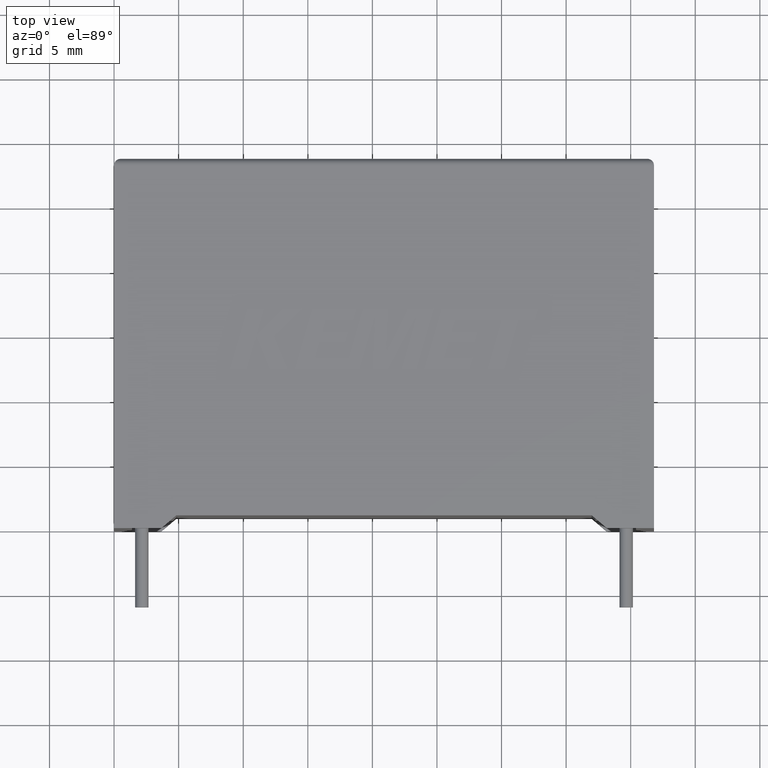
[diagram: clean part render]
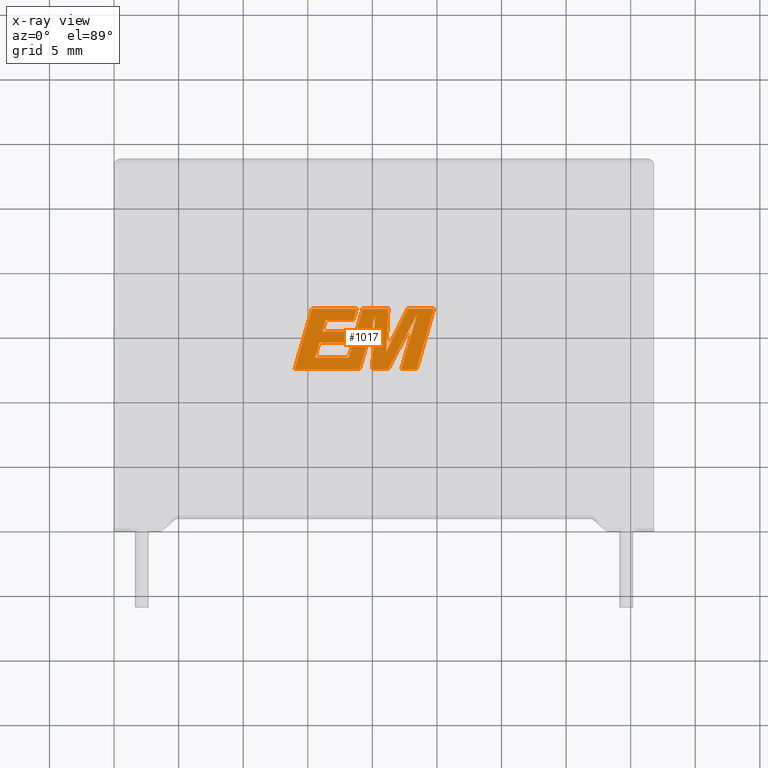
[diagram: x-ray — body ghosted, one internal face saturated and labeled with its STEP entity id]
A machine part, top view, then the same camera in x-ray: the body is ghosted and one INTERNAL B-rep face — a face not visible from any outside direction — is saturated and labeled: STEP entity #1017.
In plain terms, the highlighted planar face has unit normal (0, 0, -1).
Its self-contained STEP definition (entity closure, byte-faithful):
#3 = CARTESIAN_POINT ( 'NONE',  ( 19.98376570519902629, 12.30657999999985286, 16.19999999999999929 ) ) ;
#14 = EDGE_CURVE ( 'NONE', #2832, #770, #2727, .T. ) ;
#15 = VERTEX_POINT ( 'NONE', #1737 ) ;
#23 = VERTEX_POINT ( 'NONE', #2027 ) ;
#49 = DIRECTION ( 'NONE',  ( 1.000000000000000000, 0.000000000000000000, 0.000000000000000000 ) ) ;
#55 = ORIENTED_EDGE ( 'NONE', *, *, #1034, .F. ) ;
#76 = ORIENTED_EDGE ( 'NONE', *, *, #269, .F. ) ;
#100 = EDGE_CURVE ( 'NONE', #2660, #2832, #2961, .T. ) ;
#106 = DIRECTION ( 'NONE',  ( -0.2760118818968580467, -0.9611542233438683525, 0.000000000000000000 ) ) ;
#110 = ORIENTED_EDGE ( 'NONE', *, *, #2783, .F. ) ;
#158 = ORIENTED_EDGE ( 'NONE', *, *, #2367, .F. ) ;
#171 = EDGE_CURVE ( 'NONE', #23, #2660, #1397, .T. ) ;
#198 = DIRECTION ( 'NONE',  ( 0.2763139702539113007, 0.9610674221107073922, 0.000000000000000000 ) ) ;
#216 = CARTESIAN_POINT ( 'NONE',  ( 21.06365366960111629, 13.64368509566545384, 16.19999999999999929 ) ) ;
#219 = VERTEX_POINT ( 'NONE', #868 ) ;
#241 = VECTOR ( 'NONE', #1693, 1000.000000000000000 ) ;
#263 = CARTESIAN_POINT ( 'NONE',  ( 20.21740628887921432, 16.47479805376149287, 16.19999999999999929 ) ) ;
#269 = EDGE_CURVE ( 'NONE', #2882, #2848, #423, .T. ) ;
#277 = ORIENTED_EDGE ( 'NONE', *, *, #2777, .F. ) ;
#302 = CARTESIAN_POINT ( 'NONE',  ( 19.98376570519902629, 12.30657999999985286, 16.19999999999999929 ) ) ;
#305 = VERTEX_POINT ( 'NONE', #2119 ) ;
#330 = ORIENTED_EDGE ( 'NONE', *, *, #2843, .F. ) ;
#338 = VECTOR ( 'NONE', #1463, 1000.000000000000000 ) ;
#341 = LINE ( 'NONE', #2191, #1527 ) ;
#360 = CARTESIAN_POINT ( 'NONE',  ( 18.52971893973640505, 16.09734579713520830, 16.19999999999999929 ) ) ;
#371 = DIRECTION ( 'NONE',  ( -0.2765379750249963298, -0.9610029908221277006, 0.000000000000000000 ) ) ;
#380 = CARTESIAN_POINT ( 'NONE',  ( 23.44294751043418401, 16.49487075805291525, 16.19999999999999929 ) ) ;
#396 = VECTOR ( 'NONE', #1198, 1000.000000000000227 ) ;
#398 = CARTESIAN_POINT ( 'NONE',  ( 15.56468155929728248, 13.19732404831258421, 16.19999999999999929 ) ) ;
#423 = LINE ( 'NONE', #1360, #968 ) ;
#425 = VERTEX_POINT ( 'NONE', #380 ) ;
#427 = CARTESIAN_POINT ( 'NONE',  ( 19.24983076552901906, 16.98853116021453502, 16.19999999999999929 ) ) ;
#450 = LINE ( 'NONE', #427, #2795 ) ;
#463 = EDGE_CURVE ( 'NONE', #219, #2152, #1289, .T. ) ;
#469 = CARTESIAN_POINT ( 'NONE',  ( 19.02058908988481178, 12.30657999999985286, 16.19999999999999929 ) ) ;
#481 = VECTOR ( 'NONE', #2481, 1000.000000000000114 ) ;
#546 = CARTESIAN_POINT ( 'NONE',  ( 22.24020815187459732, 12.30657999999985286, 16.19999999999999929 ) ) ;
#576 = DIRECTION ( 'NONE',  ( 1.000000000000000000, 0.000000000000000000, 0.000000000000000000 ) ) ;
#591 = VECTOR ( 'NONE', #2269, 1000.000000000000227 ) ;
#621 = VERTEX_POINT ( 'NONE', #2899 ) ;
#623 = CARTESIAN_POINT ( 'NONE',  ( 18.52971893973640505, 16.09734579713520830, 16.19999999999999929 ) ) ;
#645 = EDGE_CURVE ( 'NONE', #15, #2242, #755, .T. ) ;
#707 = DIRECTION ( 'NONE',  ( 1.000000000000000000, 0.000000000000000000, 0.000000000000000000 ) ) ;
#708 = ORIENTED_EDGE ( 'NONE', *, *, #2651, .F. ) ;
#741 = ORIENTED_EDGE ( 'NONE', *, *, #1622, .F. ) ;
#755 = LINE ( 'NONE', #546, #1562 ) ;
#770 = VERTEX_POINT ( 'NONE', #2588 ) ;
#792 = CARTESIAN_POINT ( 'NONE',  ( 17.90550054384709000, 14.36097145934523489, 16.19999999999999929 ) ) ;
#793 = LINE ( 'NONE', #1503, #2196 ) ;
#795 = ORIENTED_EDGE ( 'NONE', *, *, #1322, .F. ) ;
#824 = VECTOR ( 'NONE', #1946, 1000.000000000000000 ) ;
#827 = CARTESIAN_POINT ( 'NONE',  ( 17.90550054384709000, 14.36097145934523489, 16.19999999999999929 ) ) ;
#832 = VERTEX_POINT ( 'NONE', #1629 ) ;
#843 = LINE ( 'NONE', #827, #1470 ) ;
#868 = CARTESIAN_POINT ( 'NONE',  ( 21.06365366960111629, 13.64368509566545384, 16.19999999999999929 ) ) ;
#890 = EDGE_CURVE ( 'NONE', #2242, #2352, #2300, .T. ) ;
#936 = ORIENTED_EDGE ( 'NONE', *, *, #2308, .F. ) ;
#953 = VERTEX_POINT ( 'NONE', #1481 ) ;
#968 = VECTOR ( 'NONE', #2293, 1000.000000000000000 ) ;
#979 = VECTOR ( 'NONE', #49, 1000.000000000000000 ) ;
#1007 = LINE ( 'NONE', #1520, #2396 ) ;
#1017 = ADVANCED_FACE ( 'NONE', ( #2456 ), #1815, .T. ) ;
#1034 = EDGE_CURVE ( 'NONE', #2229, #1690, #843, .T. ) ;
#1043 = CARTESIAN_POINT ( 'NONE',  ( 16.39657414692667103, 16.09734579713520830, 16.19999999999999929 ) ) ;
#1045 = CARTESIAN_POINT ( 'NONE',  ( 18.15272223384586070, 15.22650362160797854, 16.19999999999999929 ) ) ;
#1049 = CARTESIAN_POINT ( 'NONE',  ( 20.21740628887921432, 16.47479805376149287, 16.19999999999999929 ) ) ;
#1080 = VECTOR ( 'NONE', #2808, 1000.000000000000000 ) ;
#1100 = CARTESIAN_POINT ( 'NONE',  ( 16.14317405007220430, 15.22650362160797854, 16.19999999999999929 ) ) ;
#1141 = VERTEX_POINT ( 'NONE', #2758 ) ;
#1165 = CARTESIAN_POINT ( 'NONE',  ( 18.15272223384586070, 15.22650362160797854, 16.19999999999999929 ) ) ;
#1198 = DIRECTION ( 'NONE',  ( 0.2740217765954066076, 0.9617234872620595842, 0.000000000000000000 ) ) ;
#1202 = ORIENTED_EDGE ( 'NONE', *, *, #1828, .F. ) ;
#1284 = ORIENTED_EDGE ( 'NONE', *, *, #1871, .F. ) ;
#1289 = LINE ( 'NONE', #216, #2941 ) ;
#1300 = ORIENTED_EDGE ( 'NONE', *, *, #890, .F. ) ;
#1322 = EDGE_CURVE ( 'NONE', #953, #425, #2047, .T. ) ;
#1334 = DIRECTION ( 'NONE',  ( 0.000000000000000000, 0.000000000000000000, -1.000000000000000000 ) ) ;
#1342 = LINE ( 'NONE', #2272, #2449 ) ;
#1360 = CARTESIAN_POINT ( 'NONE',  ( 18.16009646136971156, 13.19732404831258421, 16.19999999999999929 ) ) ;
#1397 = LINE ( 'NONE', #1100, #2886 ) ;
#1405 = ORIENTED_EDGE ( 'NONE', *, *, #2343, .F. ) ;
#1435 = VERTEX_POINT ( 'NONE', #2645 ) ;
#1458 = LINE ( 'NONE', #2165, #979 ) ;
#1463 = DIRECTION ( 'NONE',  ( -1.000000000000000000, 0.000000000000000000, 0.000000000000000000 ) ) ;
#1470 = VECTOR ( 'NONE', #2700, 1000.000000000000000 ) ;
#1481 = CARTESIAN_POINT ( 'NONE',  ( 21.23193201370533245, 12.30657999999985286, 16.19999999999999929 ) ) ;
#1503 = CARTESIAN_POINT ( 'NONE',  ( 15.89623707928316776, 14.36097145934523489, 16.19999999999999929 ) ) ;
#1520 = CARTESIAN_POINT ( 'NONE',  ( 24.77605979522625290, 16.98853116021453502, 16.19999999999999929 ) ) ;
#1525 = VECTOR ( 'NONE', #371, 1000.000000000000114 ) ;
#1527 = VECTOR ( 'NONE', #1740, 1000.000000000000227 ) ;
#1560 = EDGE_CURVE ( 'NONE', #1645, #2994, #2513, .T. ) ;
#1562 = VECTOR ( 'NONE', #2965, 1000.000000000000000 ) ;
#1622 = EDGE_CURVE ( 'NONE', #305, #2229, #793, .T. ) ;
#1629 = CARTESIAN_POINT ( 'NONE',  ( 15.32396570327697027, 16.98853116021453502, 16.19999999999999929 ) ) ;
#1645 = VERTEX_POINT ( 'NONE', #263 ) ;
#1649 = CARTESIAN_POINT ( 'NONE',  ( 18.78283431738138631, 16.98853116021453502, 16.19999999999999929 ) ) ;
#1660 = CARTESIAN_POINT ( 'NONE',  ( 15.56468155929728248, 13.19732404831258421, 16.19999999999999929 ) ) ;
#1665 = AXIS2_PLACEMENT_3D ( 'NONE', #1798, #1334, #2962 ) ;
#1675 = EDGE_CURVE ( 'NONE', #2848, #305, #2813, .T. ) ;
#1690 = VERTEX_POINT ( 'NONE', #1165 ) ;
#1693 = DIRECTION ( 'NONE',  ( -1.000000000000000000, 0.000000000000000000, 0.000000000000000000 ) ) ;
#1707 = ORIENTED_EDGE ( 'NONE', *, *, #1675, .F. ) ;
#1713 = CARTESIAN_POINT ( 'NONE',  ( 21.24370812317940249, 16.98853116021453502, 16.19999999999999929 ) ) ;
#1737 = CARTESIAN_POINT ( 'NONE',  ( 22.24020815187459732, 12.30657999999985286, 16.19999999999999929 ) ) ;
#1740 = DIRECTION ( 'NONE',  ( -0.4443210308329518243, -0.8958676361826801715, 0.000000000000000000 ) ) ;
#1754 = ORIENTED_EDGE ( 'NONE', *, *, #463, .F. ) ;
#1790 = CARTESIAN_POINT ( 'NONE',  ( 23.42996431446111316, 12.30657999999985286, 16.19999999999999929 ) ) ;
#1798 = CARTESIAN_POINT ( 'NONE',  ( -0.5081854015330893315, -2.847373862995330907, 16.19999999999999929 ) ) ;
#1807 = ORIENTED_EDGE ( 'NONE', *, *, #171, .F. ) ;
#1815 = PLANE ( 'NONE',  #1665 ) ;
#1828 = EDGE_CURVE ( 'NONE', #1435, #219, #341, .T. ) ;
#1830 = EDGE_CURVE ( 'NONE', #1690, #23, #2423, .T. ) ;
#1861 = VECTOR ( 'NONE', #707, 1000.000000000000000 ) ;
#1871 = EDGE_CURVE ( 'NONE', #425, #15, #1955, .T. ) ;
#1881 = DIRECTION ( 'NONE',  ( 0.05375259206908577364, 0.9985542843760946141, 0.000000000000000000 ) ) ;
#1917 = ORIENTED_EDGE ( 'NONE', *, *, #2164, .F. ) ;
#1943 = LINE ( 'NONE', #2597, #241 ) ;
#1946 = DIRECTION ( 'NONE',  ( -1.000000000000000000, 0.000000000000000000, 0.000000000000000000 ) ) ;
#1955 = LINE ( 'NONE', #2668, #2110 ) ;
#1982 = CARTESIAN_POINT ( 'NONE',  ( 15.32396570327697027, 16.98853116021453502, 16.19999999999999929 ) ) ;
#2008 = VERTEX_POINT ( 'NONE', #469 ) ;
#2027 = CARTESIAN_POINT ( 'NONE',  ( 16.14317405007220430, 15.22650362160797854, 16.19999999999999929 ) ) ;
#2047 = LINE ( 'NONE', #2743, #1080 ) ;
#2076 = DIRECTION ( 'NONE',  ( -0.2762517575166416051, -0.9610853065513833560, 0.000000000000000000 ) ) ;
#2084 = DIRECTION ( 'NONE',  ( 0.2793947940878294678, 0.9601763114327593884, 0.000000000000000000 ) ) ;
#2110 = VECTOR ( 'NONE', #106, 1000.000000000000227 ) ;
#2117 = CARTESIAN_POINT ( 'NONE',  ( 18.16009646136971156, 13.19732404831258421, 16.19999999999999929 ) ) ;
#2119 = CARTESIAN_POINT ( 'NONE',  ( 15.89623707928316776, 14.36097145934523489, 16.19999999999999929 ) ) ;
#2127 = CARTESIAN_POINT ( 'NONE',  ( 24.77605979522625290, 16.98853116021453502, 16.19999999999999929 ) ) ;
#2152 = VERTEX_POINT ( 'NONE', #1713 ) ;
#2164 = EDGE_CURVE ( 'NONE', #770, #832, #2833, .T. ) ;
#2165 = CARTESIAN_POINT ( 'NONE',  ( 18.18721596238323102, 12.30657999999985286, 16.19999999999999929 ) ) ;
#2189 = DIRECTION ( 'NONE',  ( 1.000000000000000000, 0.000000000000000000, 0.000000000000000000 ) ) ;
#2191 = CARTESIAN_POINT ( 'NONE',  ( 22.72258785960118033, 16.98853116021453502, 16.19999999999999929 ) ) ;
#2196 = VECTOR ( 'NONE', #576, 1000.000000000000000 ) ;
#2229 = VERTEX_POINT ( 'NONE', #792 ) ;
#2242 = VERTEX_POINT ( 'NONE', #1790 ) ;
#2269 = DIRECTION ( 'NONE',  ( -0.05596501978069369498, -0.9984327301130239141, 0.000000000000000000 ) ) ;
#2272 = CARTESIAN_POINT ( 'NONE',  ( 19.02058908988481178, 12.30657999999985286, 16.19999999999999929 ) ) ;
#2285 = DIRECTION ( 'NONE',  ( 0.2759782365590697228, 0.9611638845408965182, 0.000000000000000000 ) ) ;
#2293 = DIRECTION ( 'NONE',  ( -1.000000000000000000, 0.000000000000000000, 0.000000000000000000 ) ) ;
#2300 = LINE ( 'NONE', #2798, #2996 ) ;
#2308 = EDGE_CURVE ( 'NONE', #2008, #1645, #1342, .T. ) ;
#2343 = EDGE_CURVE ( 'NONE', #2152, #621, #1943, .T. ) ;
#2352 = VERTEX_POINT ( 'NONE', #2127 ) ;
#2363 = ORIENTED_EDGE ( 'NONE', *, *, #1830, .F. ) ;
#2367 = EDGE_CURVE ( 'NONE', #2994, #953, #2395, .T. ) ;
#2395 = LINE ( 'NONE', #302, #1861 ) ;
#2396 = VECTOR ( 'NONE', #2676, 1000.000000000000000 ) ;
#2423 = LINE ( 'NONE', #1045, #338 ) ;
#2449 = VECTOR ( 'NONE', #2285, 1000.000000000000227 ) ;
#2456 = FACE_OUTER_BOUND ( 'NONE', #3001, .T. ) ;
#2471 = ORIENTED_EDGE ( 'NONE', *, *, #1560, .F. ) ;
#2481 = DIRECTION ( 'NONE',  ( 0.2732148821746286371, 0.9619530280415482526, 0.000000000000000000 ) ) ;
#2494 = LINE ( 'NONE', #1982, #1525 ) ;
#2513 = LINE ( 'NONE', #1049, #591 ) ;
#2588 = CARTESIAN_POINT ( 'NONE',  ( 18.78283431738138631, 16.98853116021453502, 16.19999999999999929 ) ) ;
#2597 = CARTESIAN_POINT ( 'NONE',  ( 21.24370812317940249, 16.98853116021453502, 16.19999999999999929 ) ) ;
#2645 = CARTESIAN_POINT ( 'NONE',  ( 22.72258785960118033, 16.98853116021453502, 16.19999999999999929 ) ) ;
#2651 = EDGE_CURVE ( 'NONE', #621, #2882, #450, .T. ) ;
#2660 = VERTEX_POINT ( 'NONE', #2980 ) ;
#2668 = CARTESIAN_POINT ( 'NONE',  ( 23.44294751043418401, 16.49487075805291525, 16.19999999999999929 ) ) ;
#2676 = DIRECTION ( 'NONE',  ( -1.000000000000000000, 0.000000000000000000, 0.000000000000000000 ) ) ;
#2700 = DIRECTION ( 'NONE',  ( 0.2746459304916892830, 0.9615454294334481178, 0.000000000000000000 ) ) ;
#2727 = LINE ( 'NONE', #360, #481 ) ;
#2743 = CARTESIAN_POINT ( 'NONE',  ( 21.23193201370533245, 12.30657999999985286, 16.19999999999999929 ) ) ;
#2758 = CARTESIAN_POINT ( 'NONE',  ( 13.97668863403073836, 12.30657999999985108, 16.19999999999999929 ) ) ;
#2777 = EDGE_CURVE ( 'NONE', #1141, #2008, #1458, .T. ) ;
#2783 = EDGE_CURVE ( 'NONE', #2352, #1435, #1007, .T. ) ;
#2795 = VECTOR ( 'NONE', #2076, 1000.000000000000114 ) ;
#2798 = CARTESIAN_POINT ( 'NONE',  ( 23.42996431446111316, 12.30657999999985286, 16.19999999999999929 ) ) ;
#2808 = DIRECTION ( 'NONE',  ( 0.4668459304955080436, 0.8843386665637680277, 0.000000000000000000 ) ) ;
#2813 = LINE ( 'NONE', #1660, #396 ) ;
#2832 = VERTEX_POINT ( 'NONE', #623 ) ;
#2833 = LINE ( 'NONE', #1649, #824 ) ;
#2843 = EDGE_CURVE ( 'NONE', #832, #1141, #2494, .T. ) ;
#2848 = VERTEX_POINT ( 'NONE', #398 ) ;
#2882 = VERTEX_POINT ( 'NONE', #2117 ) ;
#2886 = VECTOR ( 'NONE', #2084, 1000.000000000000114 ) ;
#2899 = CARTESIAN_POINT ( 'NONE',  ( 19.24983076552901906, 16.98853116021453502, 16.19999999999999929 ) ) ;
#2915 = ORIENTED_EDGE ( 'NONE', *, *, #14, .F. ) ;
#2941 = VECTOR ( 'NONE', #1881, 1000.000000000000000 ) ;
#2961 = LINE ( 'NONE', #1043, #2990 ) ;
#2962 = DIRECTION ( 'NONE',  ( -1.000000000000000000, 0.000000000000000000, 0.000000000000000000 ) ) ;
#2964 = ORIENTED_EDGE ( 'NONE', *, *, #645, .F. ) ;
#2965 = DIRECTION ( 'NONE',  ( 1.000000000000000000, 0.000000000000000000, 0.000000000000000000 ) ) ;
#2980 = CARTESIAN_POINT ( 'NONE',  ( 16.39657414692667103, 16.09734579713520830, 16.19999999999999929 ) ) ;
#2990 = VECTOR ( 'NONE', #2189, 1000.000000000000000 ) ;
#2994 = VERTEX_POINT ( 'NONE', #3 ) ;
#2996 = VECTOR ( 'NONE', #198, 1000.000000000000114 ) ;
#3001 = EDGE_LOOP ( 'NONE', ( #110, #1300, #2964, #1284, #795, #158, #2471, #936, #277, #330, #1917, #2915, #3016, #1807, #2363, #55, #741, #1707, #76, #708, #1405, #1754, #1202 ) ) ;
#3016 = ORIENTED_EDGE ( 'NONE', *, *, #100, .F. ) ;